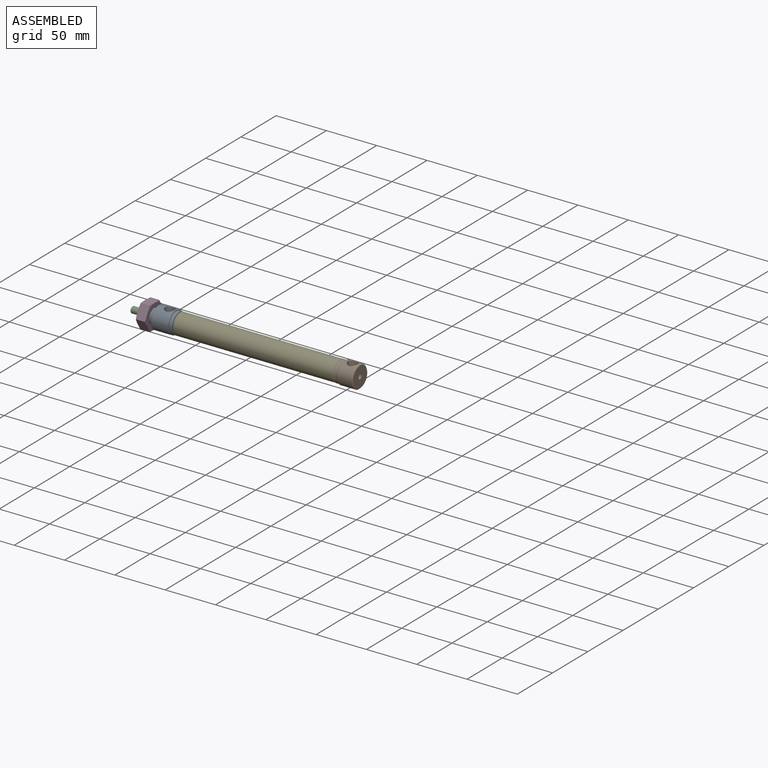
[diagram: assembled view]
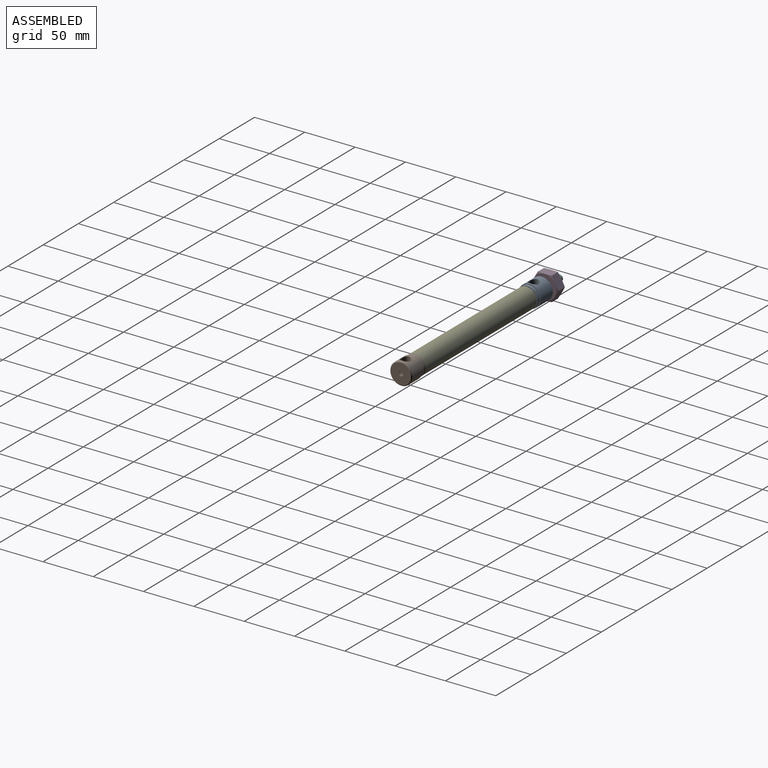
[diagram: assembled view, second angle]
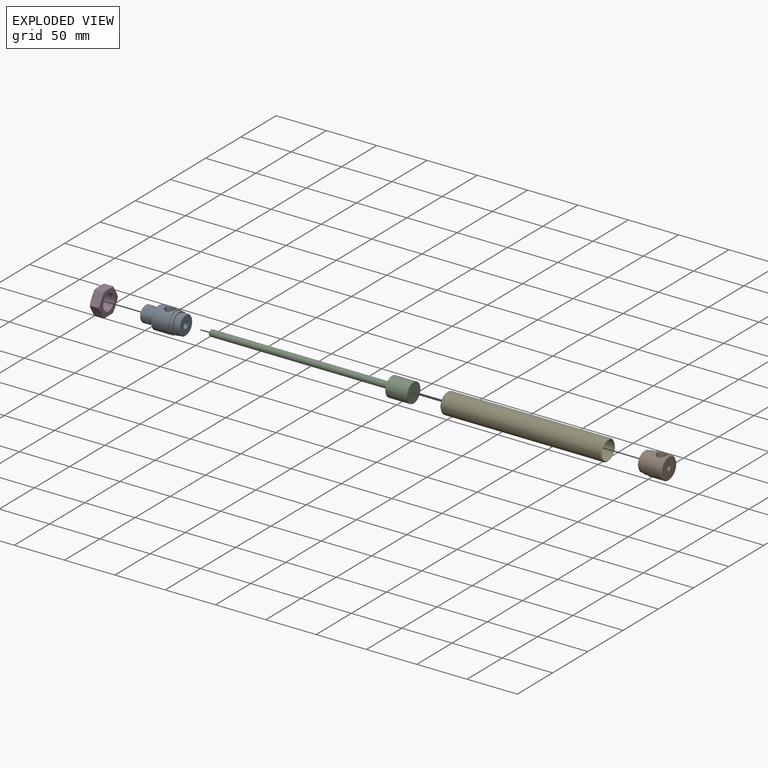
[diagram: exploded view]
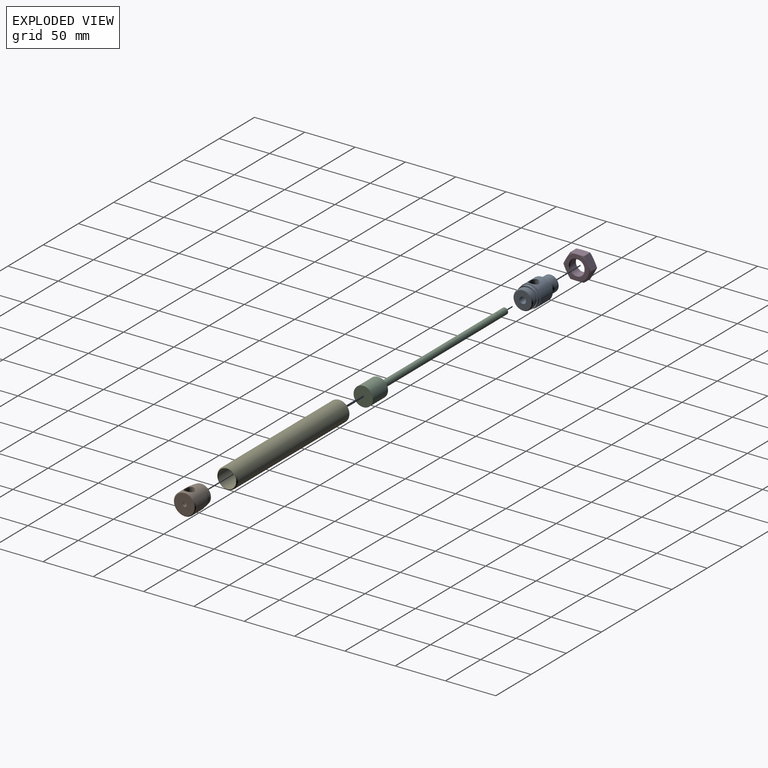
[diagram: exploded view, second angle]
ASSEMBLY  parts=5 mates=4
PART A: 32 faces, bbox 40.5x21.9x21.9 mm
  f0: cone r=3.17mm half-angle=45deg, axis (0,0,1), area 50.8mm2, adj f4,f24,f26,f27
  f1: cone r=10.26mm half-angle=45deg, axis (1,0,0), area 65.3mm2, adj f25,f31
  f2: cone r=8.91mm half-angle=45deg, axis (-1,0,0), area 20.8mm2, adj f22,f28
  f3: cylinder r=10.95mm len=21.91mm, axis (-1,0,0), area 1125.9mm2, adj f5,f17,f24
  f4: cylinder r=3.22mm len=40.23mm, axis (-1,0,0), area 774.2mm2, adj f0,f16,f18,f26,f27
  f5: cone r=10.19mm half-angle=45deg, axis (1,0,0), area 71.6mm2, adj f3,f6
  f6: plane 20.38x20.38mm, normal (-1,0,0), area 130mm2, adj f5,f7
  f7: cylinder r=7.91mm len=15.81mm, axis (-1,0,0), area 118.6mm2, adj f6,f8
  f8: plane 15.81x15.81mm, normal (-1,0,0), area 9.3mm2, adj f7,f9
  f9: torus R=7.72mm, axis (1,0,0), area 61.9mm2, adj f8,f10
  f10: cylinder r=6.84mm len=13.68mm, axis (-1,0,0), area 55.7mm2, adj f9,f11
  f11: torus R=7.72mm, axis (1,0,0), area 30mm2, adj f10,f12
  f12: cone r=7.94mm half-angle=45.1deg, axis (-1,0,0), area 56.1mm2, adj f11,f13
  f13: cylinder r=7.94mm len=15.88mm, axis (-1,0,0), area 291.4mm2, adj f12,f14
  f14: cone r=7.1mm half-angle=45deg, axis (1,0,0), area 56.1mm2, adj f13,f15
  f15: plane 14.2x14.2mm, normal (-1,0,0), area 120.4mm2, adj f14,f16
  f16: cone r=3.47mm half-angle=45deg, axis (-1,0,0), area 7.6mm2, adj f4,f15
  f17: plane 21.91x21.91mm, normal (1,0,0), area 46.5mm2, adj f3,f23
  f18: plane 17.82x17.82mm, normal (1,0,0), area 216.8mm2, adj f4,f19
  f19: cone r=9.67mm half-angle=45deg, axis (-1,0,0), area 62.9mm2, adj f18,f20
  f20: cylinder r=9.67mm len=19.34mm, axis (-1,0,0), area 250.8mm2, adj f19,f21
  f21: cone r=8.91mm half-angle=45deg, axis (1,0,0), area 62.9mm2, adj f20,f22
  f22: cylinder r=8.91mm len=17.82mm, axis (-1,0,0), area 21.3mm2, adj f2,f21
  f23: cylinder r=10.26mm len=20.51mm, axis (-1,0,0), area 204.6mm2, adj f17,f25
  f24: cone r=4.64mm half-angle=1.8deg, axis (0,0,1), area 177.1mm2, adj f0,f3
  f25: plane 20.51x20.51mm, normal (1,0,0), area 46.2mm2, adj f1,f23
  f26: cylinder r=3.17mm len=6.18mm, axis (0,0,-1), area 10.2mm2, adj f0,f4
  f27: cylinder r=3.17mm len=6.18mm, axis (0,0,-1), area 10.2mm2, adj f0,f4
  f28: torus R=9.26mm, axis (1,0,0), area 11.6mm2, adj f2,f29
  f29: cone r=9.35mm half-angle=45deg, axis (1,0,0), area 71.4mm2, adj f28,f30
  f30: plane 20.51x20.51mm, normal (1,0,0), area 5.4mm2, adj f29,f31
  f31: cylinder r=10.26mm len=20.51mm, axis (-1,0,0), area 13.1mm2, adj f1,f30
PART B: 24 faces, bbox 24.6x21.9x22 mm
  f0: cylinder r=4.6mm len=8.06mm, axis (0,0.02,-1), area 21.5mm2, adj f10,f14,f21
  f1: cylinder r=10.95mm len=21.91mm, axis (-1,0,0), area 930.1mm2, adj f2,f14,f22
  f2: cone r=10.38mm half-angle=45deg, axis (1,0,0), area 54.8mm2, adj f1,f3
  f3: cylinder r=10.38mm len=20.75mm, axis (-1,0,0), area 206.9mm2, adj f2,f4
  f4: plane 20.75x20.75mm, normal (-1,0,0), area 54mm2, adj f3,f20
  f5: cylinder r=8.91mm len=17.82mm, axis (-1,0,0), area 21.3mm2, adj f6,f19
  f6: cone r=9.67mm half-angle=45deg, axis (-1,0,0), area 62.9mm2, adj f5,f7
  f7: cylinder r=9.67mm len=19.34mm, axis (-1,0,0), area 199.1mm2, adj f6,f8
  f8: cone r=8.91mm half-angle=45deg, axis (1,0,0), area 62.9mm2, adj f7,f9
  f9: plane 17.82x17.82mm, normal (-1,0,0), area 200mm2, adj f8,f21
  f10: plane 4.67x0.64mm, normal (0,-0.02,1), area 2mm2, adj f0,f21
  f11: cylinder r=4.6mm len=8.06mm, axis (0,0.02,-1), area 21.5mm2, adj f13,f14,f21
  f12: cone r=3.96mm half-angle=60deg, axis (-1,0,0), area 39.8mm2, adj f21,f23
  f13: plane 4.67x0.64mm, normal (0,-0.02,1), area 2mm2, adj f11,f21
  f14: cone r=4.6mm half-angle=1.8deg, axis (0,-0.02,1), area 206.5mm2, adj f0,f1,f11,f21
  f15: cylinder r=10.38mm len=20.75mm, axis (-1,0,0), area 13.2mm2, adj f16,f20
  f16: plane 20.75x20.75mm, normal (-1,0,0), area 5.5mm2, adj f15,f17
  f17: cone r=10.29mm half-angle=45deg, axis (-1,0,0), area 82.4mm2, adj f16,f18
  f18: torus R=9.26mm, axis (1,0,0), area 11.6mm2, adj f17,f19
  f19: cone r=9.17mm half-angle=45deg, axis (1,0,0), area 20.8mm2, adj f5,f18
  f20: cone r=9.51mm half-angle=45deg, axis (-1,0,0), area 76.3mm2, adj f4,f15
  f21: cylinder r=3.96mm len=23.58mm, axis (-1,0,0), area 496.2mm2, adj f0,f9,f10,f11,f12,f13,f14
  f22: cone r=10.95mm half-angle=45deg, axis (-1,0,0), area 71.6mm2, adj f1,f23
  f23: plane 20.38x20.38mm, normal (1,0,0), area 311.4mm2, adj f12,f22
PART C: 10 faces, bbox 201.7x19.2x19.2 mm
  f0: cylinder r=2.92mm len=5.84mm, axis (-1,0,0), area 4.7mm2, adj f1,f2
  f1: plane 6.35x6.35mm, normal (1,0,0), area 4.9mm2, adj f0,f6
  f2: plane 6.35x6.35mm, normal (-1,0,0), area 4.9mm2, adj f0,f4
  f3: plane 19.24x19.24mm, normal (1,0,0), area 290.8mm2, adj f9
  f4: cylinder r=3.17mm len=167.49mm, axis (-1,0,0), area 3341.2mm2, adj f2,f5
  f5: plane 19.24x19.24mm, normal (-1,0,0), area 259.1mm2, adj f4,f9
  f6: cylinder r=3.17mm len=11.91mm, axis (-1,0,0), area 237.5mm2, adj f1,f7
  f7: cone r=2.63mm half-angle=45deg, axis (1,0,0), area 14mm2, adj f6,f8
  f8: plane 5.27x5.27mm, normal (-1,0,0), area 21.8mm2, adj f7
  f9: cylinder r=9.62mm len=21.46mm, axis (-1,0,0), area 1297.3mm2, adj f3,f5
PART D: 23 faces, bbox 27.6x27.6x9.7 mm
  f0: plane 11.94x9.65mm, normal (0.5,-0.87,0), area 128.4mm2, adj f1,f6,f8,f10,f18,f19
  f1: plane 11.94x9.65mm, normal (-0.5,-0.87,0), area 128.4mm2, adj f0,f3,f7,f10,f17,f18
  f2: plane 23.88x23.88mm, normal (0,0,-1), area 249.8mm2, adj f7,f8,f9,f10,f12,f13,f15
  f3: cone r=11.94mm half-angle=75deg, axis (0,0,-1), area 7.9mm2, adj f1,f16,f17
  f4: plane 11.94x9.65mm, normal (-0.5,0.87,0), area 128.4mm2, adj f5,f9,f13,f17,f21,f22
  f5: plane 11.94x9.65mm, normal (0.5,0.87,0), area 128.4mm2, adj f4,f6,f12,f13,f20,f21
  f6: plane 13.79x9.65mm, normal (1,0,0), area 128.4mm2, adj f0,f5,f8,f12,f19,f20
  f7: cone r=14.33mm half-angle=75deg, axis (0,0,1), area 7.9mm2, adj f1,f2,f17
  f8: cone r=14.33mm half-angle=75deg, axis (0,0,1), area 7.9mm2, adj f0,f2,f6
  f9: cone r=14.33mm half-angle=75deg, axis (0,0,1), area 7.9mm2, adj f2,f4,f17
  f10: cone r=14.33mm half-angle=75deg, axis (0,0,1), area 7.9mm2, adj f0,f1,f2
  f11: cone r=7.94mm half-angle=45deg, axis (0,0,1), area 51.2mm2, adj f14,f16
  f12: cone r=14.33mm half-angle=75deg, axis (0,0,1), area 7.9mm2, adj f2,f5,f6
  f13: cone r=14.33mm half-angle=75deg, axis (0,0,1), area 7.9mm2, adj f2,f4,f5
  f14: cylinder r=7.17mm len=14.35mm, axis (0,0,1), area 366.3mm2, adj f11,f15
  f15: cone r=7.17mm half-angle=45deg, axis (0,0,-1), area 51.2mm2, adj f2,f14
  f16: plane 23.88x23.88mm, normal (0,0,1), area 249.8mm2, adj f3,f11,f18,f19,f20,f21,f22
  f17: plane 13.79x9.65mm, normal (-1,0,0), area 128.4mm2, adj f1,f3,f4,f7,f9,f22
  f18: cone r=11.94mm half-angle=75deg, axis (0,0,-1), area 7.9mm2, adj f0,f1,f16
  f19: cone r=11.94mm half-angle=75deg, axis (0,0,-1), area 7.9mm2, adj f0,f6,f16
  f20: cone r=11.94mm half-angle=75deg, axis (0,0,-1), area 7.9mm2, adj f5,f6,f16
  f21: cone r=11.94mm half-angle=75deg, axis (0,0,-1), area 7.9mm2, adj f4,f5,f16
  f22: cone r=11.94mm half-angle=75deg, axis (0,0,-1), area 7.9mm2, adj f4,f16,f17
PART E: 14 faces, bbox 160.3x22.2x22.2 mm
  f0: cone r=10.03mm half-angle=45deg, axis (1,0,0), area 59mm2, adj f1,f13
  f1: torus R=9.26mm, axis (1,0,0), area 11.6mm2, adj f0,f2
  f2: cone r=9.17mm half-angle=45deg, axis (-1,0,0), area 20.8mm2, adj f1,f3
  f3: cylinder r=8.91mm len=17.82mm, axis (-1,0,0), area 21.3mm2, adj f2,f4
  f4: cone r=8.91mm half-angle=45deg, axis (1,0,0), area 62.9mm2, adj f3,f5
  f5: cylinder r=9.67mm len=157.39mm, axis (-1,0,0), area 9563.9mm2, adj f4,f6
  f6: cone r=9.67mm half-angle=45deg, axis (-1,0,0), area 62.9mm2, adj f5,f7
  f7: cylinder r=8.91mm len=17.82mm, axis (-1,0,0), area 21.3mm2, adj f6,f8
  f8: cone r=8.91mm half-angle=45deg, axis (1,0,0), area 20.8mm2, adj f7,f9
  f9: torus R=9.26mm, axis (1,0,0), area 11.6mm2, adj f8,f10
  f10: cone r=9.35mm half-angle=45deg, axis (-1,0,0), area 59mm2, adj f9,f11
  f11: torus R=9.49mm, axis (1,0,0), area 38.3mm2, adj f10,f12
  f12: cylinder r=10.26mm len=157.75mm, axis (-1,0,0), area 10164.5mm2, adj f11,f13
  f13: torus R=9.49mm, axis (1,0,0), area 38.3mm2, adj f0,f12
PLACE A at identity
PLACE B t=(188.95,0,0)mm
PLACE C at identity
PLACE D rot(axis=(0,1,0),90deg) t=(9.52,0,0)mm
PLACE E t=(34.84,0,0)mm
MATE cylindrical C.f0 <-> B.f19  axis (1,0,0) through (188.95,0,0)mm
MATE fastened D.f3 <-> A.f1  axis (1,0,0) through (9.52,0,0)mm
MATE fastened A.f1 <-> E.f0  axis (1,0,0) through (34.2,0,0)mm
MATE fastened B.f18 <-> E.f0  axis (1,0,0) through (194.39,0,0)mm
